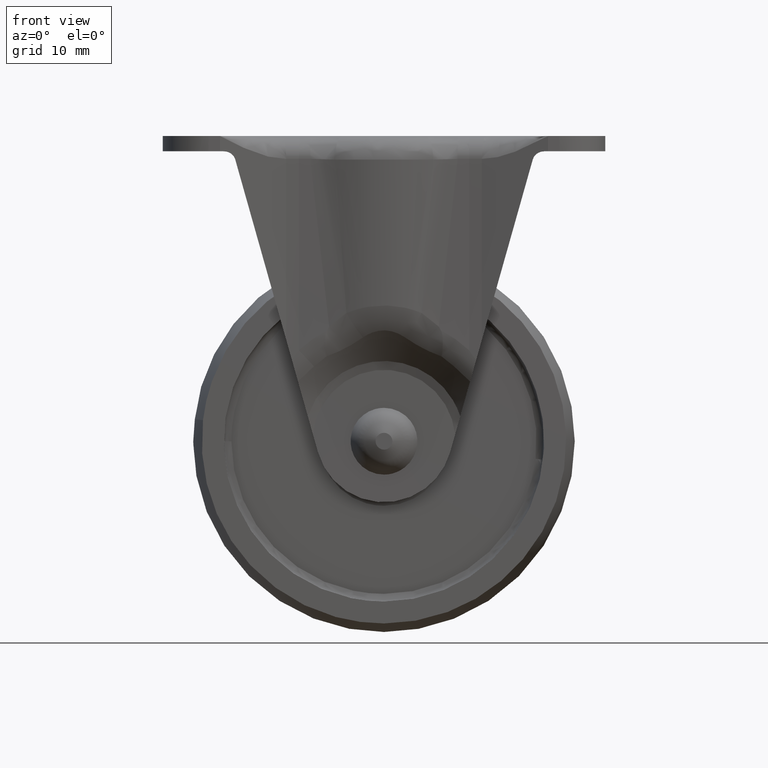
[diagram: clean part render]
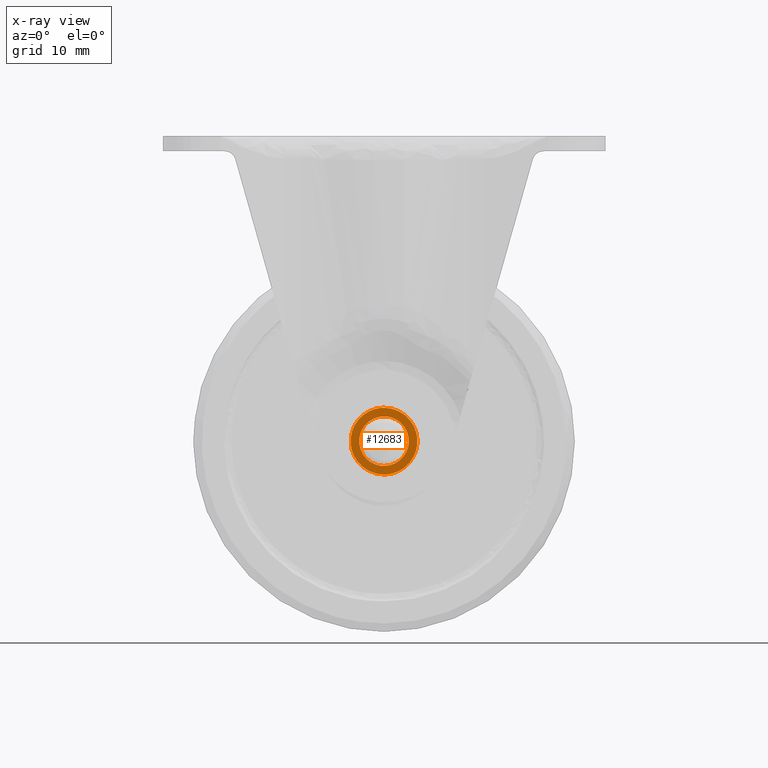
[diagram: x-ray — body ghosted, one internal face saturated and labeled with its STEP entity id]
A machine part, front view, then the same camera in x-ray: the body is ghosted and one INTERNAL B-rep face — a face not visible from any outside direction — is saturated and labeled: STEP entity #12683.
In plain terms, the highlighted face is a freeform B-spline surface patch.
Its self-contained STEP definition (entity closure, byte-faithful):
#12216=CARTESIAN_POINT('',(-3.227280960678991,-15.045662509514999,0.383611262659064));
#12217=VERTEX_POINT('',#12216);
#12218=CARTESIAN_POINT('',(0.0,-15.045662509514999,-3.250000000000000));
#12219=VERTEX_POINT('',#12218);
#12220=CARTESIAN_POINT('',(-3.227280960678991,-15.045662509515003,0.383611262659064));
#12221=CARTESIAN_POINT('',(-3.250000000000000,-15.045662509514996,0.192478388893567));
#12222=CARTESIAN_POINT('',(-3.250000000000000,-15.045662509514999,0.0));
#12223=CARTESIAN_POINT('',(-3.250000000000000,-15.045662509514996,-3.250000000000000));
#12224=CARTESIAN_POINT('',(0.0,-15.045662509514999,-3.250000000000000));
#12232=(BOUNDED_CURVE()B_SPLINE_CURVE(2,(#12220,#12221,#12222,#12223,#12224),.UNSPECIFIED.,.F.,.U.)B_SPLINE_CURVE_WITH_KNOTS((3,2,3),(0.229562473513068,0.250000000000000,0.500000000000000),.UNSPECIFIED.)CURVE()GEOMETRIC_REPRESENTATION_ITEM()RATIONAL_B_SPLINE_CURVE((0.956026754182836,0.976055948330629,1.0,0.707106781186547,1.0))REPRESENTATION_ITEM(''));
#12233=EDGE_CURVE('',#12217,#12219,#12232,.T.);
#12274=CARTESIAN_POINT('',(3.243938094864733,-15.045662509514999,-0.198407753591852));
#12275=VERTEX_POINT('',#12274);
#12281=CARTESIAN_POINT('',(0.0,-15.045662509514999,-3.250000000000000));
#12282=CARTESIAN_POINT('',(3.057294717247940,-15.045662509514997,-3.250000000000000));
#12283=CARTESIAN_POINT('',(3.243938094864733,-15.045662509515001,-0.198407753591852));
#12291=(BOUNDED_CURVE()B_SPLINE_CURVE(2,(#12281,#12282,#12283),.UNSPECIFIED.,.F.,.U.)B_SPLINE_CURVE_WITH_KNOTS((3,3),(0.500000000000000,0.739332962230951),.UNSPECIFIED.)CURVE()GEOMETRIC_REPRESENTATION_ITEM()RATIONAL_B_SPLINE_CURVE((1.0,0.719603993296073,0.976072041649591))REPRESENTATION_ITEM(''));
#12292=EDGE_CURVE('',#12219,#12275,#12291,.T.);
#12315=CARTESIAN_POINT('',(0.0,-15.045662509514999,3.250000000000000));
#12316=VERTEX_POINT('',#12315);
#12317=CARTESIAN_POINT('',(0.0,-15.045662509514999,3.250000000000000));
#12318=CARTESIAN_POINT('',(-2.886567209297632,-15.045662509515001,3.250000000000000));
#12319=CARTESIAN_POINT('',(-3.227280960678991,-15.045662509515003,0.383611262659064));
#12327=(BOUNDED_CURVE()B_SPLINE_CURVE(2,(#12317,#12318,#12319),.UNSPECIFIED.,.F.,.U.)B_SPLINE_CURVE_WITH_KNOTS((3,3),(0.0,0.229562473513068),.UNSPECIFIED.)CURVE()GEOMETRIC_REPRESENTATION_ITEM()RATIONAL_B_SPLINE_CURVE((1.0,0.731050832855918,0.956026754182836))REPRESENTATION_ITEM(''));
#12328=EDGE_CURVE('',#12316,#12217,#12327,.T.);
#12330=CARTESIAN_POINT('',(3.243938094864733,-15.045662509514997,-0.198407753591852));
#12331=CARTESIAN_POINT('',(3.250000000000000,-15.045662509514996,-0.099296480824272));
#12332=CARTESIAN_POINT('',(3.250000000000000,-15.045662509514999,0.0));
#12333=CARTESIAN_POINT('',(3.250000000000000,-15.045662509514996,3.250000000000000));
#12334=CARTESIAN_POINT('',(0.0,-15.045662509514999,3.250000000000000));
#12342=(BOUNDED_CURVE()B_SPLINE_CURVE(2,(#12330,#12331,#12332,#12333,#12334),.UNSPECIFIED.,.F.,.U.)B_SPLINE_CURVE_WITH_KNOTS((3,2,3),(0.739332962230951,0.750000000000000,1.0),.UNSPECIFIED.)CURVE()GEOMETRIC_REPRESENTATION_ITEM()RATIONAL_B_SPLINE_CURVE((0.976072041649589,0.987502787890474,1.0,0.707106781186547,1.0))REPRESENTATION_ITEM(''));
#12343=EDGE_CURVE('',#12275,#12316,#12342,.T.);
#12636=CARTESIAN_POINT('',(-4.814230177645528,-15.045662509514999,4.814230177645915));
#12637=CARTESIAN_POINT('',(-4.814230177645528,-15.045662509514999,-4.814229942846902));
#12638=CARTESIAN_POINT('',(4.814229942846507,-15.045662509514999,4.814230177645915));
#12639=CARTESIAN_POINT('',(4.814229942846507,-15.045662509514999,-4.814229942846902));
#12640=B_SPLINE_SURFACE_WITH_KNOTS('',1,1,((#12636,#12638),(#12637,#12639)),.UNSPECIFIED.,.F.,.F.,.U.,(2,2),(2,2),(0.0,9.628460120492818),(0.0,9.628460120492035),.UNSPECIFIED.);
#12641=CARTESIAN_POINT('',(0.0,-15.045662509514999,4.376970988489382));
#12642=VERTEX_POINT('',#12641);
#12643=CARTESIAN_POINT('',(0.0,-15.045662509514999,-4.376970988489389));
#12644=VERTEX_POINT('',#12643);
#12645=CARTESIAN_POINT('',(0.0,-15.045662509514999,4.376970988489382));
#12646=CARTESIAN_POINT('',(4.376970988489386,-15.045662509515005,4.376970988489381));
#12647=CARTESIAN_POINT('',(4.376970988489386,-15.045662509514999,-3.673819E-015));
#12648=CARTESIAN_POINT('',(4.376970988489386,-15.045662509515005,-4.376970988489389));
#12649=CARTESIAN_POINT('',(0.0,-15.045662509514999,-4.376970988489389));
#12657=(BOUNDED_CURVE()B_SPLINE_CURVE(2,(#12645,#12646,#12647,#12648,#12649),.UNSPECIFIED.,.F.,.U.)B_SPLINE_CURVE_WITH_KNOTS((3,2,3),(0.0,0.250000000000000,0.500000000000000),.UNSPECIFIED.)CURVE()GEOMETRIC_REPRESENTATION_ITEM()RATIONAL_B_SPLINE_CURVE((1.0,0.707106781186548,1.0,0.707106781186548,1.0))REPRESENTATION_ITEM(''));
#12658=EDGE_CURVE('',#12642,#12644,#12657,.T.);
#12659=ORIENTED_EDGE('',*,*,#12658,.T.);
#12660=CARTESIAN_POINT('',(0.0,-15.045662509514999,-4.376970988489389));
#12661=CARTESIAN_POINT('',(-4.376970988489386,-15.045662509515005,-4.376970988489389));
#12662=CARTESIAN_POINT('',(-4.376970988489386,-15.045662509514999,-3.673819E-015));
#12663=CARTESIAN_POINT('',(-4.376970988489386,-15.045662509515005,4.376970988489381));
#12664=CARTESIAN_POINT('',(0.0,-15.045662509514999,4.376970988489382));
#12672=(BOUNDED_CURVE()B_SPLINE_CURVE(2,(#12660,#12661,#12662,#12663,#12664),.UNSPECIFIED.,.F.,.U.)B_SPLINE_CURVE_WITH_KNOTS((3,2,3),(0.500000000000000,0.750000000000000,1.0),.UNSPECIFIED.)CURVE()GEOMETRIC_REPRESENTATION_ITEM()RATIONAL_B_SPLINE_CURVE((1.0,0.707106781186548,1.0,0.707106781186548,1.0))REPRESENTATION_ITEM(''));
#12673=EDGE_CURVE('',#12644,#12642,#12672,.T.);
#12674=ORIENTED_EDGE('',*,*,#12673,.T.);
#12675=EDGE_LOOP('',(#12659,#12674));
#12676=FACE_OUTER_BOUND('',#12675,.T.);
#12677=ORIENTED_EDGE('',*,*,#12292,.T.);
#12678=ORIENTED_EDGE('',*,*,#12343,.T.);
#12679=ORIENTED_EDGE('',*,*,#12328,.T.);
#12680=ORIENTED_EDGE('',*,*,#12233,.T.);
#12681=EDGE_LOOP('',(#12677,#12678,#12679,#12680));
#12682=FACE_BOUND('',#12681,.T.);
#12683=ADVANCED_FACE('',(#12676,#12682),#12640,.F.);